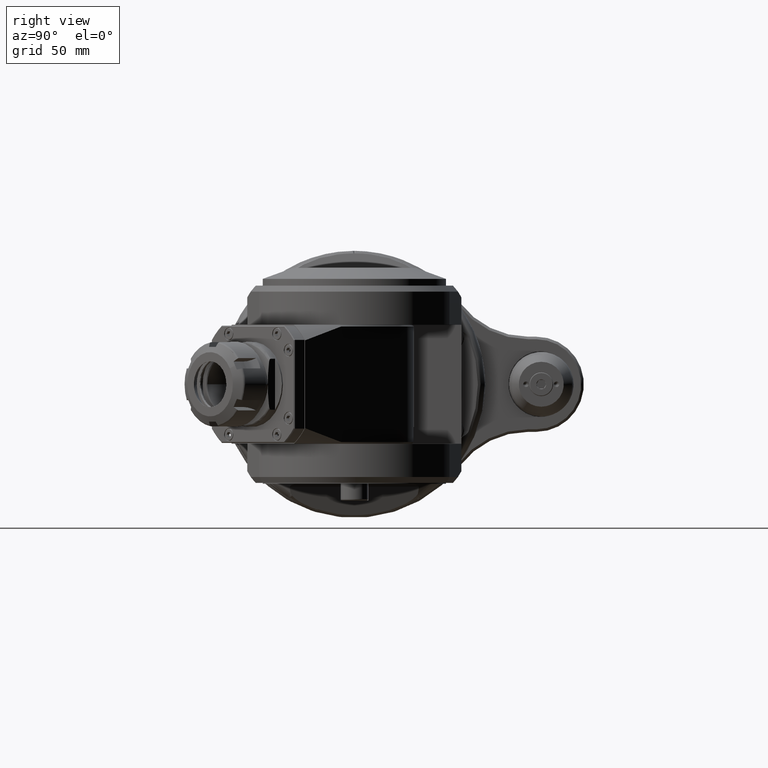
[diagram: clean part render]
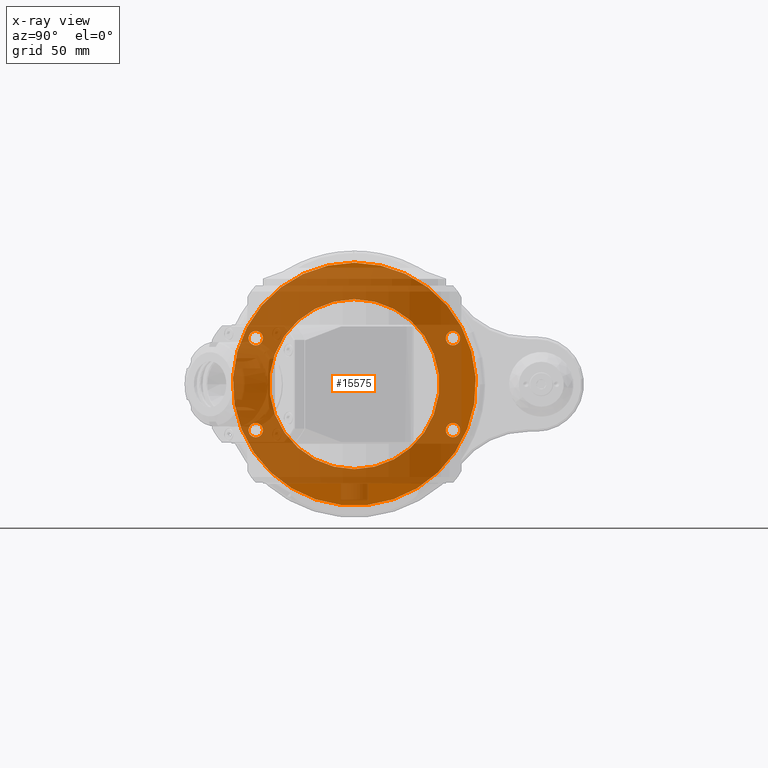
[diagram: x-ray — body ghosted, one internal face saturated and labeled with its STEP entity id]
A machine part, right view, then the same camera in x-ray: the body is ghosted and one INTERNAL B-rep face — a face not visible from any outside direction — is saturated and labeled: STEP entity #15575.
In plain terms, the highlighted planar face has unit normal (-1, -0, 0).
Its self-contained STEP definition (entity closure, byte-faithful):
#624=FACE_BOUND('',#2956,.T.);
#625=FACE_BOUND('',#2957,.T.);
#626=FACE_BOUND('',#2958,.T.);
#627=FACE_BOUND('',#2959,.T.);
#628=FACE_BOUND('',#2960,.T.);
#1194=PLANE('',#17092);
#1972=FACE_OUTER_BOUND('',#2955,.T.);
#2955=EDGE_LOOP('',(#13189));
#2956=EDGE_LOOP('',(#13190));
#2957=EDGE_LOOP('',(#13191));
#2958=EDGE_LOOP('',(#13192));
#2959=EDGE_LOOP('',(#13193));
#2960=EDGE_LOOP('',(#13194));
#5988=CIRCLE('',#17091,71.5);
#5989=CIRCLE('',#17093,50.);
#5990=CIRCLE('',#17094,4.2);
#5991=CIRCLE('',#17095,4.2);
#5992=CIRCLE('',#17096,4.2);
#5993=CIRCLE('',#17097,4.2);
#7261=VERTEX_POINT('',#44177);
#7262=VERTEX_POINT('',#44181);
#7263=VERTEX_POINT('',#44183);
#7264=VERTEX_POINT('',#44185);
#7265=VERTEX_POINT('',#44187);
#7266=VERTEX_POINT('',#44189);
#9338=EDGE_CURVE('',#7261,#7261,#5988,.T.);
#9339=EDGE_CURVE('',#7262,#7262,#5989,.T.);
#9340=EDGE_CURVE('',#7263,#7263,#5990,.T.);
#9341=EDGE_CURVE('',#7264,#7264,#5991,.T.);
#9342=EDGE_CURVE('',#7265,#7265,#5992,.T.);
#9343=EDGE_CURVE('',#7266,#7266,#5993,.T.);
#13189=ORIENTED_EDGE('',*,*,#9338,.T.);
#13190=ORIENTED_EDGE('',*,*,#9339,.T.);
#13191=ORIENTED_EDGE('',*,*,#9340,.T.);
#13192=ORIENTED_EDGE('',*,*,#9341,.T.);
#13193=ORIENTED_EDGE('',*,*,#9342,.T.);
#13194=ORIENTED_EDGE('',*,*,#9343,.T.);
#15575=ADVANCED_FACE('',(#1972,#624,#625,#626,#627,#628),#1194,.T.);
#17091=AXIS2_PLACEMENT_3D('',#44179,#20600,#20601);
#17092=AXIS2_PLACEMENT_3D('',#44180,#20602,#20603);
#17093=AXIS2_PLACEMENT_3D('',#44182,#20604,#20605);
#17094=AXIS2_PLACEMENT_3D('',#44184,#20606,#20607);
#17095=AXIS2_PLACEMENT_3D('',#44186,#20608,#20609);
#17096=AXIS2_PLACEMENT_3D('',#44188,#20610,#20611);
#17097=AXIS2_PLACEMENT_3D('',#44190,#20612,#20613);
#20600=DIRECTION('center_axis',(-1.,0.,0.));
#20601=DIRECTION('ref_axis',(0.,1.,0.));
#20602=DIRECTION('center_axis',(-1.,0.,0.));
#20603=DIRECTION('ref_axis',(0.,1.,0.));
#20604=DIRECTION('center_axis',(1.,0.,0.));
#20605=DIRECTION('ref_axis',(0.,1.,0.));
#20606=DIRECTION('center_axis',(1.,0.,0.));
#20607=DIRECTION('ref_axis',(0.,1.,0.));
#20608=DIRECTION('center_axis',(1.,0.,0.));
#20609=DIRECTION('ref_axis',(0.,1.,0.));
#20610=DIRECTION('center_axis',(1.,0.,0.));
#20611=DIRECTION('ref_axis',(0.,1.,0.));
#20612=DIRECTION('center_axis',(1.,0.,0.));
#20613=DIRECTION('ref_axis',(0.,1.,0.));
#44177=CARTESIAN_POINT('',(-41.,71.5,0.));
#44179=CARTESIAN_POINT('Origin',(-41.,0.,0.));
#44180=CARTESIAN_POINT('Origin',(-41.,60.75,0.));
#44181=CARTESIAN_POINT('',(-41.,-50.,6.12323399573677E-15));
#44182=CARTESIAN_POINT('Origin',(-41.,0.,0.));
#44183=CARTESIAN_POINT('',(-41.,-22.8475687514,-58.00369837035));
#44184=CARTESIAN_POINT('Origin',(-41.,-27.0475687514,-58.00369837035));
#44185=CARTESIAN_POINT('',(-41.,-22.8475687514,58.00369837035));
#44186=CARTESIAN_POINT('Origin',(-41.,-27.0475687514,58.00369837035));
#44187=CARTESIAN_POINT('',(-41.,31.2475687514,58.00369837035));
#44188=CARTESIAN_POINT('Origin',(-41.,27.0475687514,58.00369837035));
#44189=CARTESIAN_POINT('',(-41.,31.2475687514,-58.00369837035));
#44190=CARTESIAN_POINT('Origin',(-41.,27.0475687514,-58.00369837035));